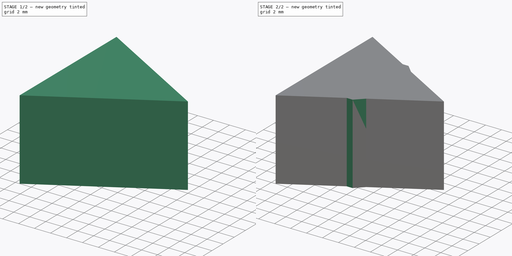
[diagram: build sequence overview — one tinted view per stage of 2, left to right]
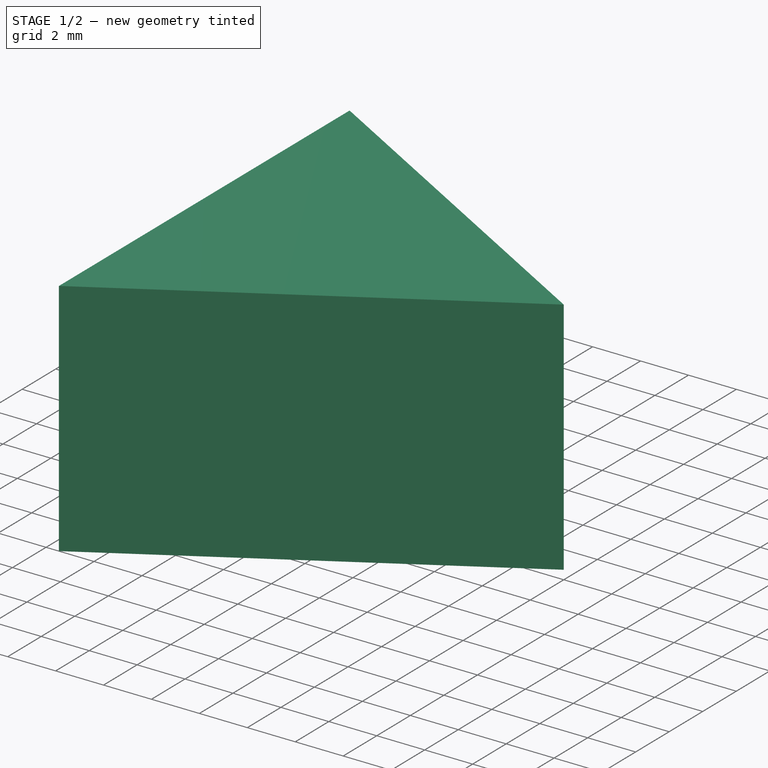
[diagram: stage 1 of 2 — iso view after this stage's code; geometry added in this stage tinted green]
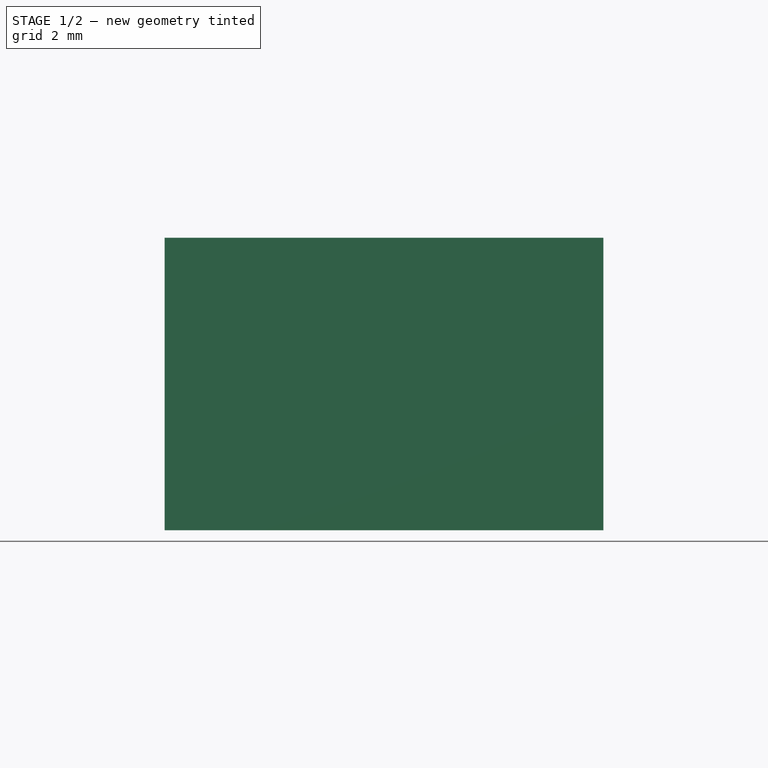
[diagram: stage 1 of 2 — front view after this stage's code; geometry added in this stage tinted green]
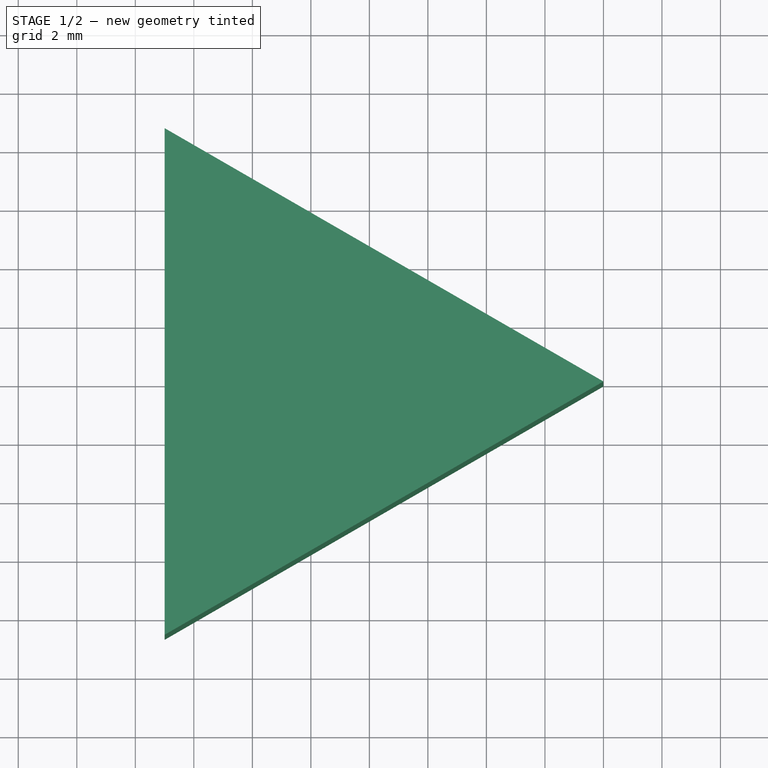
[diagram: stage 1 of 2 — top view after this stage's code; geometry added in this stage tinted green]
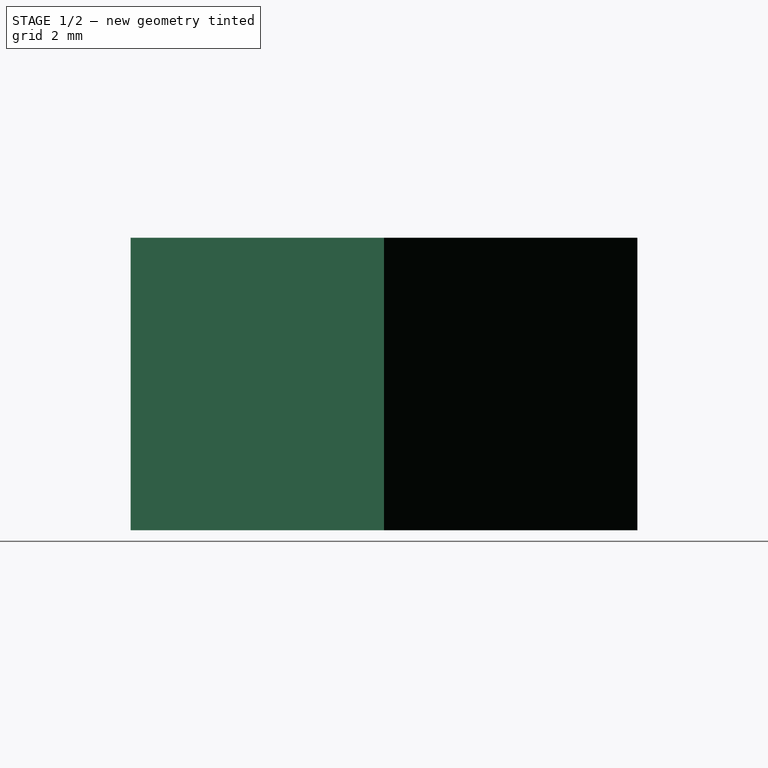
[diagram: stage 1 of 2 — right view after this stage's code; geometry added in this stage tinted green]
FCSTD DOCUMENT  (FreeCAD 0.19R17089 +1543 (Git))
Label: rt-super-2-b
License: All rights reserved
LicenseURL: http://en.wikipedia.org/wiki/All_rights_reserved
objects: Part::FeaturePython×16, App::FeaturePython×13, Sketcher::SketchObject×4, PartDesign::Pad×4, PartDesign::Body×4
note: 30 computed .brp shape members not serialized (recipe doc carries the construction recipe); baked Part::Feature solids carry a one-line shape summary decoded from their .brp

FEATURE [PartDesign::Body] Body001  label="Cylinder 000"
  Group = -> [Sketch001,Pad001]
  Origin = -> Origin001
  Tip = -> Pad001
FEATURE [Part::FeaturePython] Parts  # WARN: FeaturePython — macro-defined, semantics opaque (R4)
  Group = -> [Body,Body001]
  GroupMode = 0
FEATURE [Sketcher::SketchObject] Sketch002
  MapMode = 5
  Support = -> [XY_Plane002]
  sketch-geometry (4):
    g0: LineSegment StartX=10 StartY=0 StartZ=0 EndX=-5 EndY=8.66025 EndZ=0
    g1: LineSegment StartX=-5 StartY=8.66025 StartZ=0 EndX=-5 EndY=-8.66025 EndZ=0
    g2: LineSegment StartX=-5 StartY=-8.66025 StartZ=0 EndX=10 EndY=0 EndZ=0
    g3: Circle [constr] CenterX=0 CenterY=0 CenterZ=0 NormalX=0 NormalY=0 NormalZ=1 AngleXU=0 Radius=10
  constraints (11):
    c: Coincident(g0,g1)
    c: Coincident(g1,g2)
    c: Coincident(g2,g0)
    c: Equal(g0,g1)
    c: Equal(g0,g2)
    c: PointOnObject(g0,g3)
    c: PointOnObject(g1,g3)
    c: PointOnObject(g2,g3)
    c: Coincident(g3,g-1)
    c: PointOnObject(g0,g-1)
    c: DistanceX(g1,g-1) = 5
FEATURE [PartDesign::Pad] Pad002
  ClaimChildren = false
  Length = 10
  Length2 = 100
  Profile = -> Sketch002
  Type = 0
FEATURE [PartDesign::Body] Body002  label="Prism 000"
  Group = -> [Sketch002,Pad002]
  Origin = -> Origin002
  Placement = pos=(0,0,-10) rot=(0,0,1;0rad)
  Tip = -> Pad002
FEATURE [Sketcher::SketchObject] Sketch003
  MapMode = 5
  Support = -> [XY_Plane003]
  sketch-geometry (1):
    g0: Circle CenterX=0 CenterY=0 CenterZ=0 NormalX=0 NormalY=0 NormalZ=1 AngleXU=0 Radius=2.5
  constraints (2):
    c: Coincident(g0,g-1)
    c: Diameter(g0) = 5
FEATURE [PartDesign::Pad] Pad003
  ClaimChildren = false
  Length = 10
  Length2 = 100
  Profile = -> Sketch003
  Type = 0
FEATURE [PartDesign::Body] Body003  label="Cylinder 001"
  Group = -> [Sketch003,Pad003]
  Origin = -> Origin003
  Placement = pos=(0,1.279e-13,0) rot=(0,0,1;0rad)
  Tip = -> Pad003
FEATURE [Part::FeaturePython] Parts001  # WARN: FeaturePython — macro-defined, semantics opaque (R4)
  Group = -> [Body002,Body003]
  GroupMode = 0
FEATURE [Part::FeaturePython] Assembly  label="octaedge-based 000"  # WARN: FeaturePython — macro-defined, semantics opaque (R4)
  AutoRelax = true
  BuildShape = 0
  Freeze = false
  Group = -> [Constraints,Elements,Parts]
  GroupMode = 1
  SolverType = 1
  Verbose = false
  _SolverType = 1
  _Version = 1
FEATURE [App::FeaturePython] Constraints  # WARN: FeaturePython — macro-defined, semantics opaque (R4)
  Group = -> [Constraint]
  GroupMode = 1
  _Version = 1
FEATURE [App::FeaturePython] Elements  # WARN: FeaturePython — macro-defined, semantics opaque (R4)
  Group = -> [Element,Element001,Element002,Element003,Element004]
  GroupMode = 1
FEATURE [Part::FeaturePython] Element  label="Octagon Top"  # link proxy (typed FeaturePython)
  Detach = false
  LinkTransform = true
  LinkedObject = -> Body [Pad.Face10]
  _Parent = -> Elements
FEATURE [Part::FeaturePython] Element001  label="Public Right"  # link proxy (typed FeaturePython)
  Detach = false
  LinkTransform = true
  LinkedObject = -> Body [Pad.Face7]
  _Parent = -> Elements
FEATURE [Part::FeaturePython] Element002  label="Public Front"  # link proxy (typed FeaturePython)
  Detach = false
  LinkTransform = true
  LinkedObject = -> Body [Pad.Face5]
  _Parent = -> Elements
FEATURE [Part::FeaturePython] Element003  label="Cylinder Top"  # link proxy (typed FeaturePython)
  Detach = false
  LinkTransform = true
  LinkedObject = -> Body001 [Pad001.Edge3]
  _Parent = -> Elements
FEATURE [Part::FeaturePython] Element004  label="Cylinder Bottom"  # link proxy (typed FeaturePython)
  Detach = false
  LinkTransform = true
  LinkedObject = -> Body001 [Pad001.Edge2]
  _Parent = -> Elements
FEATURE [App::FeaturePython] Constraint  label="PlaneCoincident"  # WARN: FeaturePython — macro-defined, semantics opaque (R4)
  Angle = 0
  AnglePitch = 0
  AngleRoll = 0
  Cascade = false
  ConstraintType = 2
  Disabled = false
  Group = -> [ElementLink,ElementLink001]
  GroupMode = 1
  LockAngle = false
  Multiply = false
  OffsetX = 0
  OffsetY = 0
  _ConstraintType = 35
  _Parent = -> Constraints
FEATURE [App::FeaturePython] ElementLink  label="Cylinder Bottom"  # link proxy (typed FeaturePython)
  LinkTransform = true
  LinkedObject = -> Element004
  _Parent = -> Constraint
FEATURE [App::FeaturePython] ElementLink001  label="Octagon Top"  # link proxy (typed FeaturePython)
  LinkTransform = true
  LinkedObject = -> Element
  _Parent = -> Constraint
FEATURE [Part::FeaturePython] Assembly001  label="prism-based 000"  # WARN: FeaturePython — macro-defined, semantics opaque (R4)
  AutoRelax = true
  BuildShape = 0
  Freeze = false
  Group = -> [Constraints001,Elements001,Parts001]
  GroupMode = 1
  SolverType = 1
  Verbose = false
  _SolverType = 1
  _Version = 1
FEATURE [App::FeaturePython] Constraints001  # WARN: FeaturePython — macro-defined, semantics opaque (R4)
  Group = -> [Constraint001,Constraint002]
  GroupMode = 1
  _Version = 1
FEATURE [App::FeaturePython] Elements001  # WARN: FeaturePython — macro-defined, semantics opaque (R4)
  Group = -> [Element005,Element006,Element007,Element008,Element009,_Element,_Element001]
  GroupMode = 1
FEATURE [Part::FeaturePython] Element005  label="Cylinder Top"  # link proxy (typed FeaturePython)
  Detach = false
  LinkTransform = true
  LinkedObject = -> Body003 [Pad003.Edge3]
  _Parent = -> Elements001
FEATURE [Part::FeaturePython] Element006  label="Cylinder Bottom"  # link proxy (typed FeaturePython)
  Detach = false
  LinkTransform = true
  LinkedObject = -> Body003 [Pad003.Edge2]
  _Parent = -> Elements001
FEATURE [Part::FeaturePython] Element007  label="Private Top"  # link proxy (typed FeaturePython)
  Detach = false
  LinkTransform = true
  LinkedObject = -> Body002 [Pad002.Face5]
  _Parent = -> Elements001
FEATURE [Part::FeaturePython] Element008  label="Public Front"  # link proxy (typed FeaturePython)
  Detach = false
  LinkTransform = true
  LinkedObject = -> Body002 [Pad002.Face3]
  _Parent = -> Elements001
FEATURE [Part::FeaturePython] Element009  label="Public Right"  # link proxy (typed FeaturePython)
  Detach = false
  LinkTransform = true
  LinkedObject = -> Body002 [Pad002.Face1]
  _Parent = -> Elements001
FEATURE [App::FeaturePython] Constraint001  label="AxialAlignment"  # WARN: FeaturePython — macro-defined, semantics opaque (R4)
  Angle = 0
  AnglePitch = 0
  AngleRoll = 0
  ConstraintType = 4
  Disabled = false
  Group = -> [ElementLink002,ElementLink003]
  GroupMode = 1
  LockAngle = false
  Multiply = false
  _ConstraintType = 36
  _Parent = -> Constraints001
FEATURE [App::FeaturePython] ElementLink002  label="Prism Z Axis"  # link proxy (typed FeaturePython)
  LinkTransform = true
  LinkedObject = -> _Element
  _Parent = -> Constraint001
FEATURE [Part::FeaturePython] _Element  label="Prism Z Axis"  # link proxy (typed FeaturePython)
  Detach = false
  LinkTransform = true
  LinkedObject = -> Body002 [Origin002.Z_Axis002.]
  _Parent = -> Elements001
FEATURE [App::FeaturePython] ElementLink003  label="Cylinder Z Axis"  # link proxy (typed FeaturePython)
  LinkTransform = true
  LinkedObject = -> _Element001
  _Parent = -> Constraint001
FEATURE [Part::FeaturePython] _Element001  label="Cylinder Z Axis"  # link proxy (typed FeaturePython)
  Detach = false
  LinkTransform = true
  LinkedObject = -> Body003 [Origin003.Z_Axis003.]
  _Parent = -> Elements001
FEATURE [App::FeaturePython] Constraint002  label="PlaneAlignment"  # WARN: FeaturePython — macro-defined, semantics opaque (R4)
  Angle = 0
  AnglePitch = 0
  AngleRoll = 0
  Cascade = false
  ConstraintType = 1
  Disabled = false
  Group = -> [ElementLink004,ElementLink005]
  GroupMode = 1
  LockAngle = false
  _ConstraintType = 37
  _Parent = -> Constraints001
FEATURE [App::FeaturePython] ElementLink004  label="Private Top"  # link proxy (typed FeaturePython)
  LinkTransform = true
  LinkedObject = -> Element007
  _Parent = -> Constraint002
FEATURE [App::FeaturePython] ElementLink005  label="Cylinder Bottom"  # link proxy (typed FeaturePython)
  LinkTransform = true
  LinkedObject = -> Element006
  _Parent = -> Constraint002
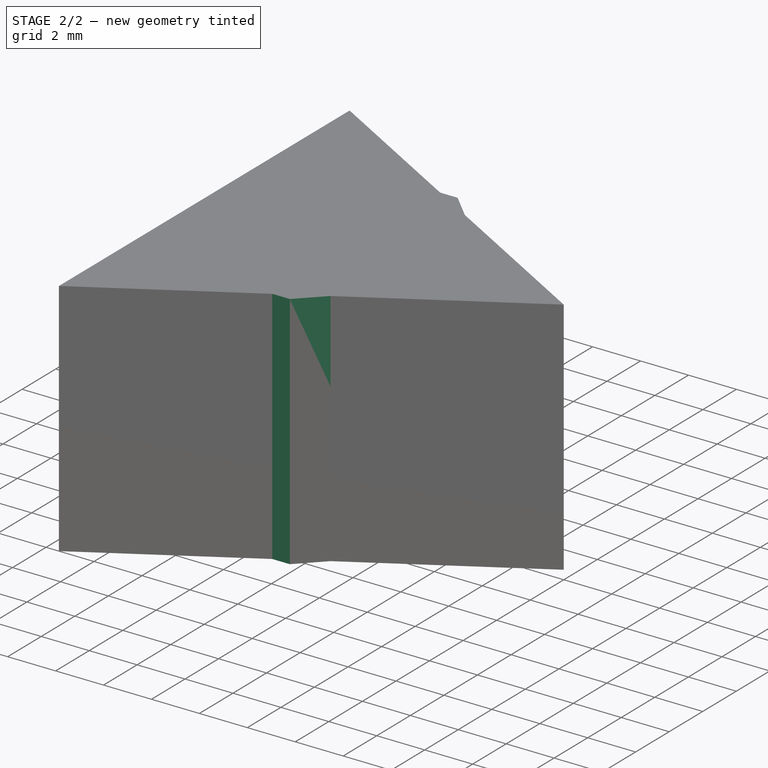
[diagram: stage 2 of 2 — iso view after this stage's code; geometry added in this stage tinted green]
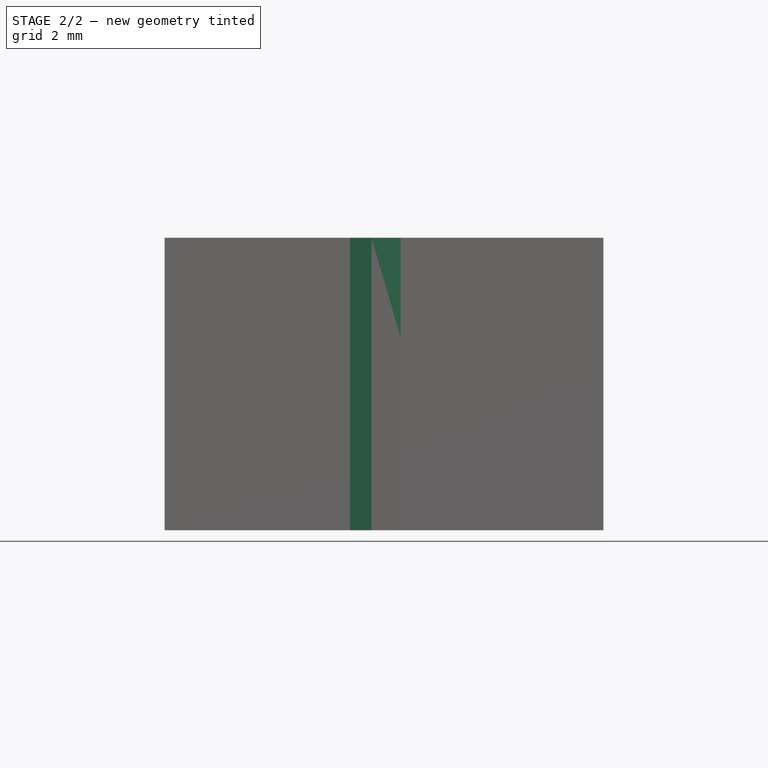
[diagram: stage 2 of 2 — front view after this stage's code; geometry added in this stage tinted green]
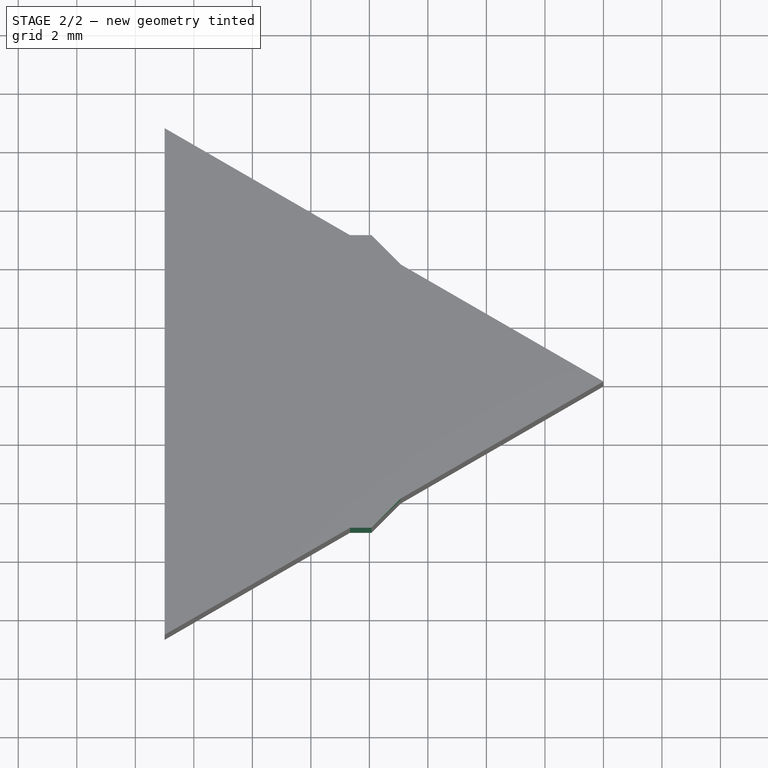
[diagram: stage 2 of 2 — top view after this stage's code; geometry added in this stage tinted green]
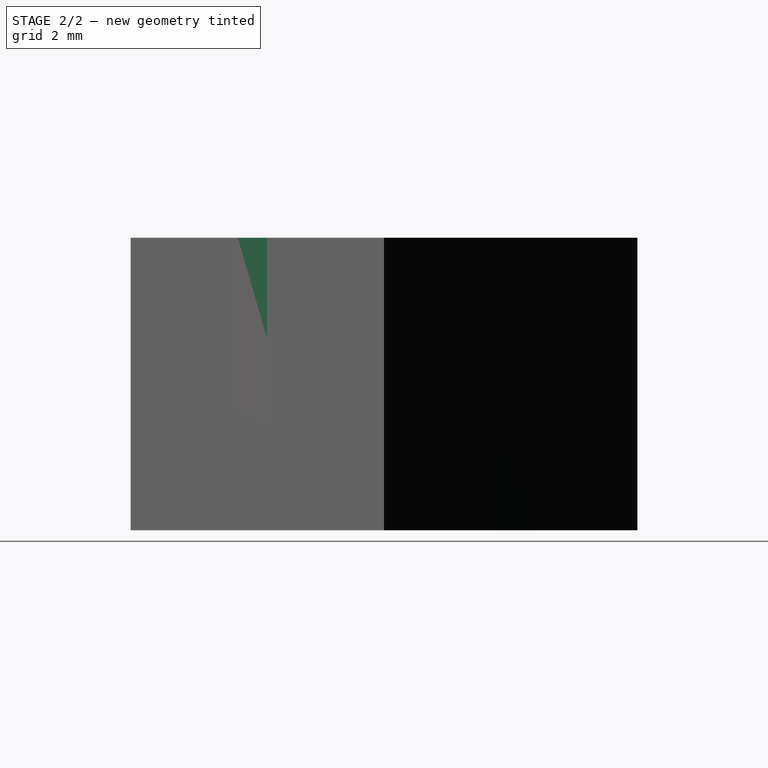
[diagram: stage 2 of 2 — right view after this stage's code; geometry added in this stage tinted green]
FEATURE [Sketcher::SketchObject] Sketch
  MapMode = 5
  Support = -> [XY_Plane]
  sketch-geometry (9):
    g0: LineSegment StartX=2.07107 StartY=5 StartZ=0 EndX=-2.07107 EndY=5 EndZ=0
    g1: LineSegment StartX=-2.07107 StartY=5 StartZ=0 EndX=-5 EndY=2.07107 EndZ=0
    g2: LineSegment StartX=-5 StartY=2.07107 StartZ=0 EndX=-5 EndY=-2.07107 EndZ=0
    g3: LineSegment StartX=-5 StartY=-2.07107 StartZ=0 EndX=-2.07107 EndY=-5 EndZ=0
    g4: LineSegment StartX=-2.07107 StartY=-5 StartZ=0 EndX=2.07107 EndY=-5 EndZ=0
    g5: LineSegment StartX=2.07107 StartY=-5 StartZ=0 EndX=5 EndY=-2.07107 EndZ=0
    g6: LineSegment StartX=5 StartY=-2.07107 StartZ=0 EndX=5 EndY=2.07107 EndZ=0
    g7: LineSegment StartX=5 StartY=2.07107 StartZ=0 EndX=2.07107 EndY=5 EndZ=0
    g8: Circle [constr] CenterX=0 CenterY=0 CenterZ=0 NormalX=0 NormalY=0 NormalZ=1 AngleXU=0 Radius=5.41196
  constraints (20):
    c: Coincident(g0,g1)
    c: Coincident(g1,g2)
    c: Coincident(g2,g3)
    c: Coincident(g3,g4)
    c: Coincident(g4,g5)
    c: Coincident(g5,g6)
    c: Coincident(g6,g7)
    c: Coincident(g7,g0)
    c: Equal(g0, g1-g7) x7
    c: PointOnObject(g0,g8)
    c: PointOnObject(g1,g8)
    c: PointOnObject(g2,g8)
    c: PointOnObject(g3,g8)
    c: PointOnObject(g4,g8)
    c: PointOnObject(g5,g8)
    c: PointOnObject(g6,g8)
    c: PointOnObject(g7,g8)
    c: Coincident(g8,g-1)
    c: Horizontal(g0)
    c: Distance(g0,g4) = 10
FEATURE [PartDesign::Pad] Pad
  ClaimChildren = false
  Length = 10
  Length2 = 100
  Profile = -> Sketch
  Type = 0
FEATURE [PartDesign::Body] Body  label="Octagon 000"
  Group = -> [Sketch,Pad]
  Origin = -> Origin
  Placement = pos=(0,0,-10) rot=(0,0,1;0rad)
  Tip = -> Pad
FEATURE [Sketcher::SketchObject] Sketch001
  MapMode = 5
  Support = -> [XY_Plane001]
  sketch-geometry (1):
    g0: Circle CenterX=0 CenterY=0 CenterZ=0 NormalX=0 NormalY=0 NormalZ=1 AngleXU=0 Radius=2.5
  constraints (2):
    c: Coincident(g0,g-1)
    c: Diameter(g0) = 5
FEATURE [PartDesign::Pad] Pad001
  ClaimChildren = false
  Length = 10
  Length2 = 100
  Profile = -> Sketch001
  Type = 0
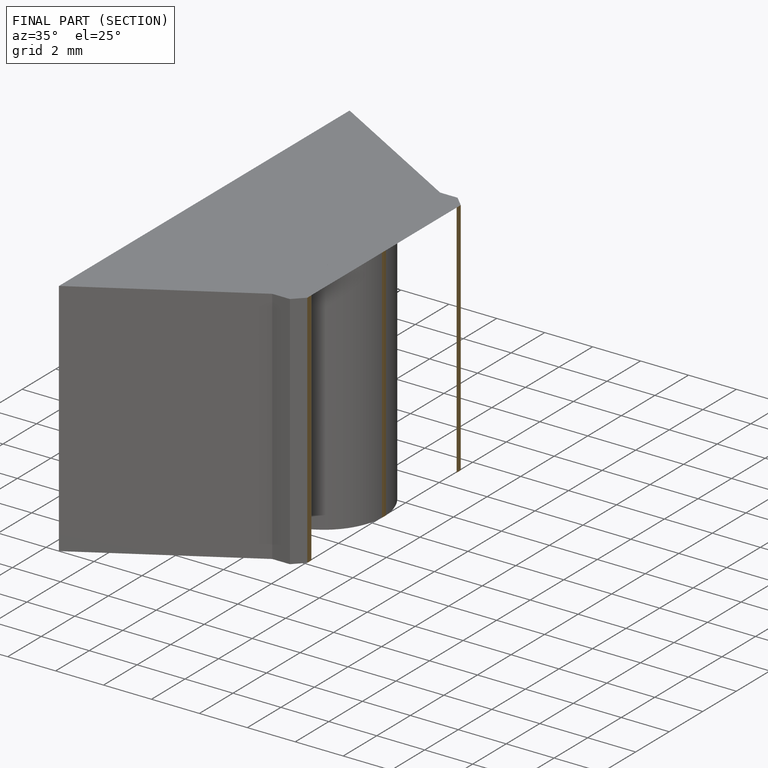
[diagram: finished part — half-section view (interior)]
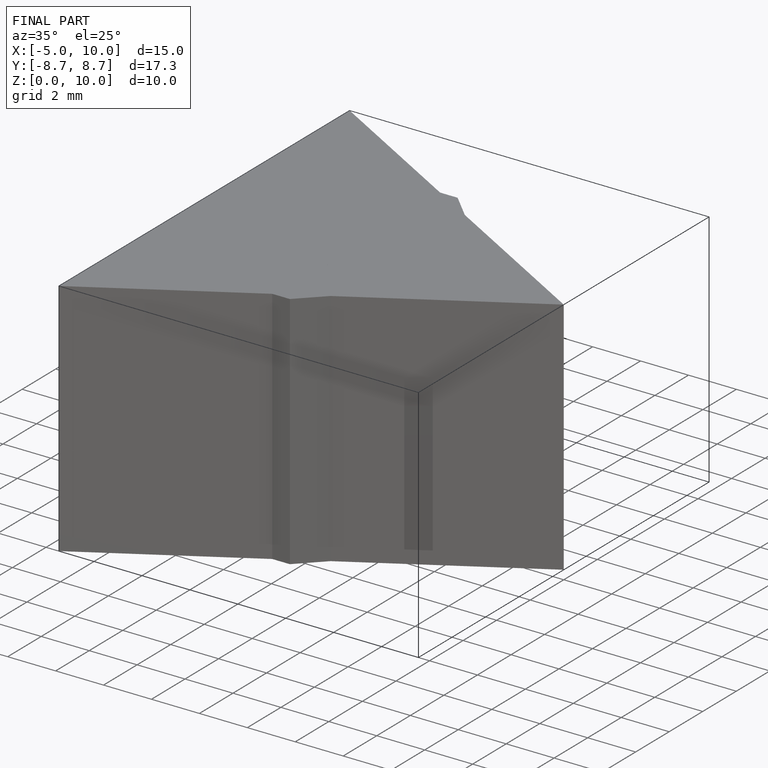
[diagram: finished part — iso view with bounding-box wireframe]
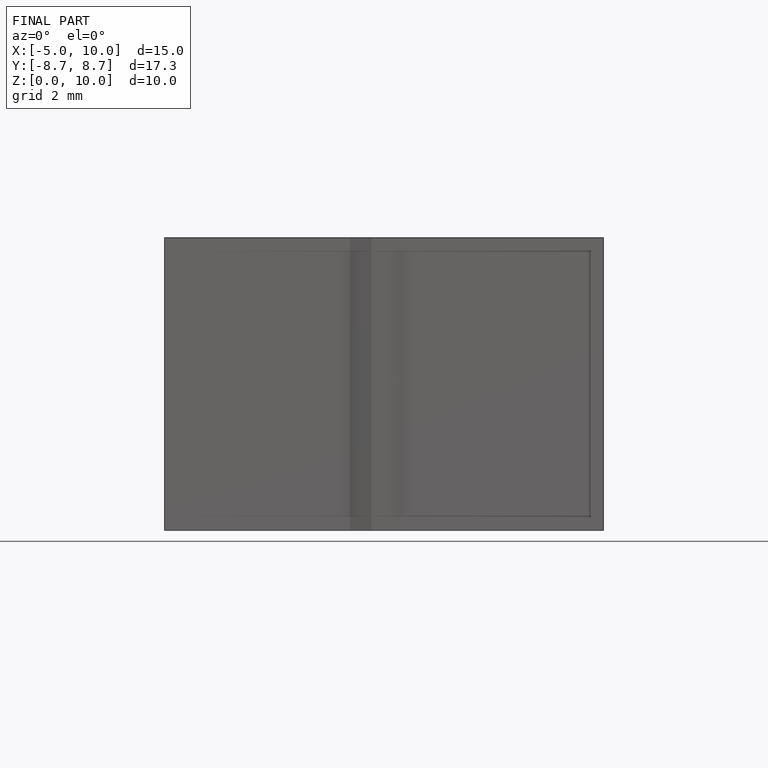
[diagram: finished part — front view with bounding-box wireframe]
